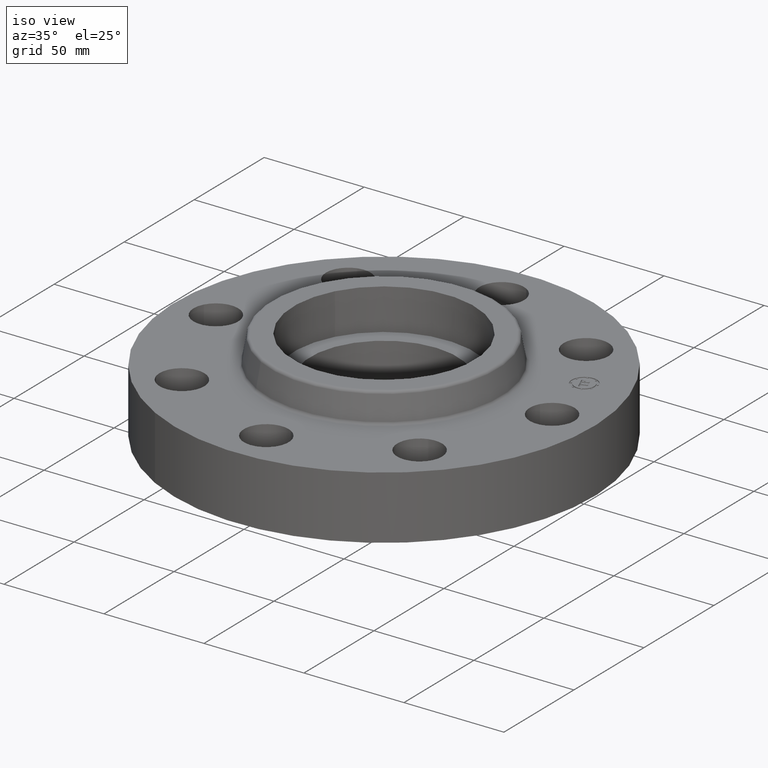
[diagram: clean part render]
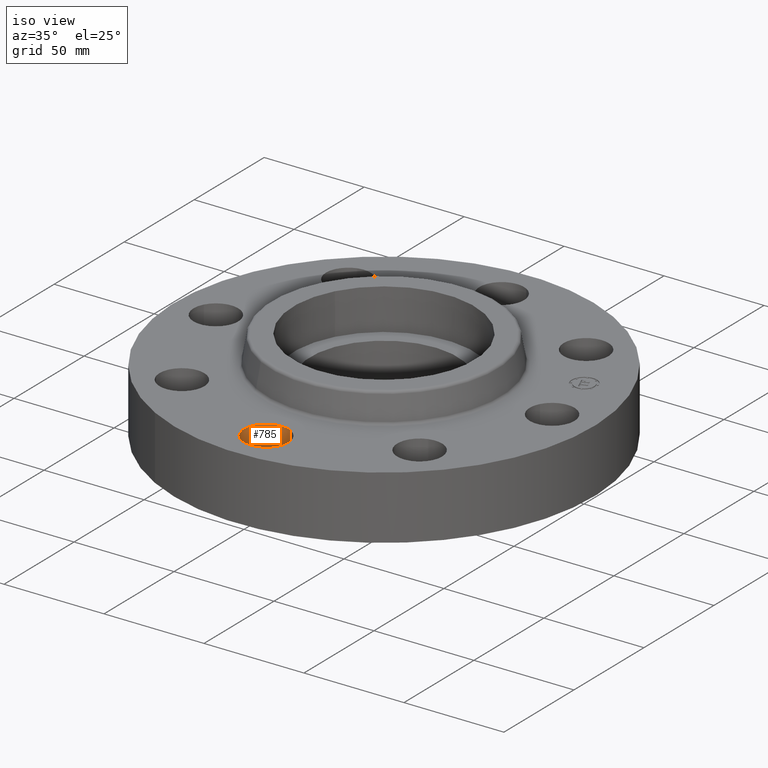
[diagram: same view with one face highlighted and labeled with its STEP entity id]
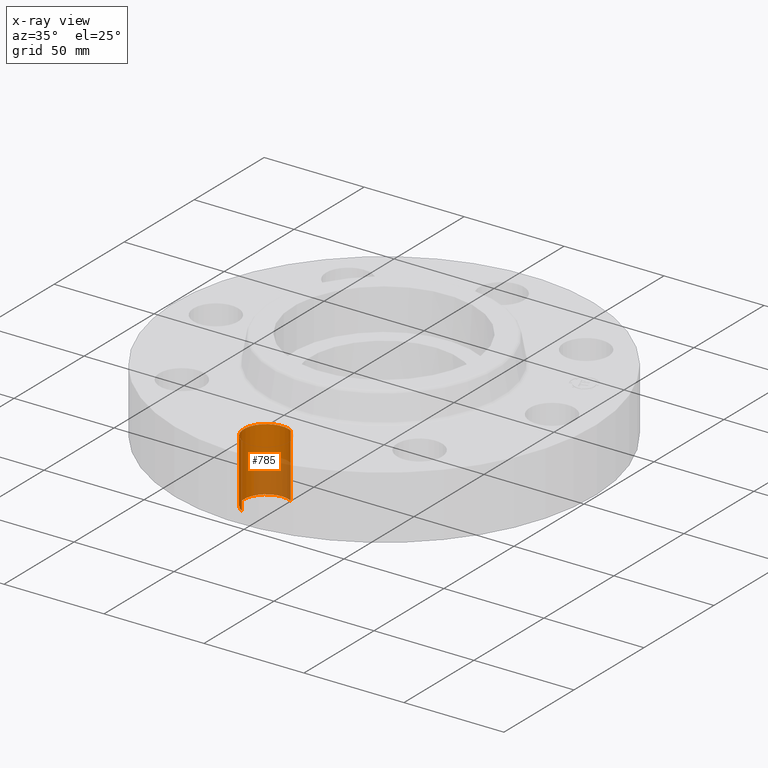
[diagram: x-ray of the same camera — body ghosted, the highlighted face saturated]
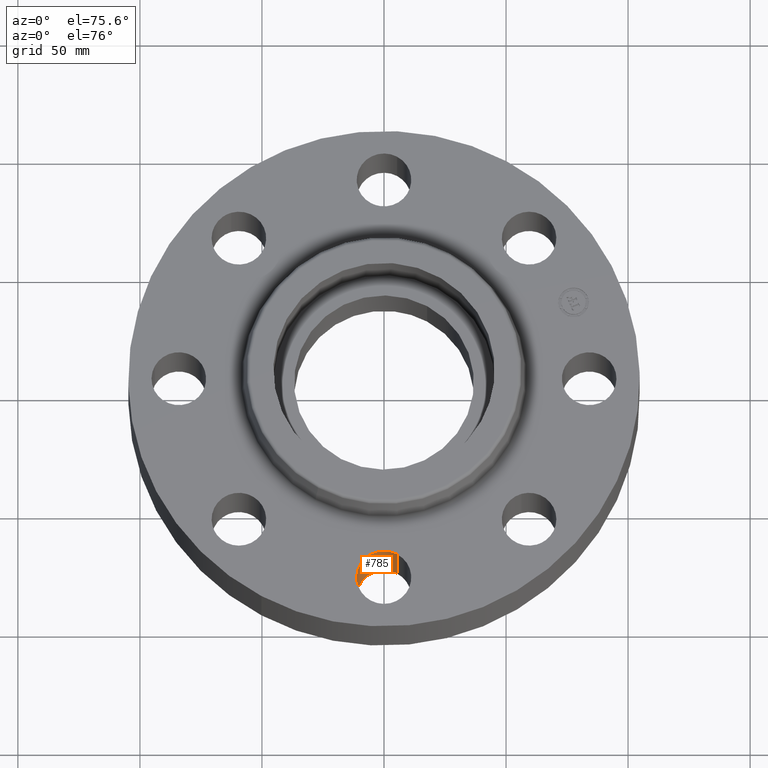
[diagram: same view with one face highlighted and labeled with its STEP entity id]
A machine part, iso view. The second image highlights one B-rep face of the part: STEP entity #785.
The next image is the same camera in x-ray: the body ghosted, the highlighted face saturated — about 38% of this face is hidden behind the body in this view.
A second angle (auxiliary view) of the same face is appended — the face is thin or edge-on in the first view.
In plain terms, the highlighted cylindrical surface (edge-blend (fillet) strip) has radius 11.176 mm, axis along (0, 0, -1).
Its self-contained STEP definition (entity closure, byte-faithful):
#342=AXIS2_PLACEMENT_3D('Circle Axis2P3D',#340,#341,$) ;
#760=AXIS2_PLACEMENT_3D('Cylinder Axis2P3D',#757,#758,#759) ;
#335=CARTESIAN_POINT('Vertex',(0.210947237,-2.92386367278,0.)) ;
#337=CARTESIAN_POINT('Vertex',(-0.210947237,-3.69613632728,0.)) ;
#340=CARTESIAN_POINT('Axis2P3D Location',(3.49676543189E-017,-3.31000000003,0.)) ;
#724=CARTESIAN_POINT('Line Origine',(0.210947236987,-2.92386367278,0.624999999989)) ;
#728=CARTESIAN_POINT('Vertex',(0.210947237,-2.92386367279,1.25000000001)) ;
#731=CARTESIAN_POINT('Line Origine',(-0.210947236987,-3.69613632724,0.624999999989)) ;
#735=CARTESIAN_POINT('Vertex',(-0.210947236987,-3.69613632724,1.24999999999)) ;
#757=CARTESIAN_POINT('Axis2P3D Location',(-3.56803423843E-016,-3.31000000001,1.24606299213)) ;
#763=CARTESIAN_POINT('Control Point',(-0.210947236987,-3.69613632724,1.25000000001)) ;
#764=CARTESIAN_POINT('Control Point',(-0.271601389433,-3.66300081274,1.25000000001)) ;
#765=CARTESIAN_POINT('Control Point',(-0.325749398821,-3.61795588326,1.25000000001)) ;
#766=CARTESIAN_POINT('Control Point',(-0.370262840224,-3.5626953225,1.25000000001)) ;
#767=CARTESIAN_POINT('Control Point',(-0.435223603166,-3.43769808393,1.25)) ;
#768=CARTESIAN_POINT('Control Point',(-0.448097302225,-3.29741808449,1.25)) ;
#769=CARTESIAN_POINT('Control Point',(-0.440497941251,-3.22686721097,1.25)) ;
#770=CARTESIAN_POINT('Control Point',(-0.398045742217,-3.09254661997,1.25)) ;
#771=CARTESIAN_POINT('Control Point',(-0.307955883249,-2.98425060119,1.25)) ;
#772=CARTESIAN_POINT('Control Point',(-0.252695322491,-2.93973715979,1.25)) ;
#773=CARTESIAN_POINT('Control Point',(-0.127698083922,-2.87477639684,1.24999999999)) ;
#774=CARTESIAN_POINT('Control Point',(0.0125819155223,-2.86190269778,1.24999999999)) ;
#775=CARTESIAN_POINT('Control Point',(0.0831327890369,-2.86950205876,1.24999999999)) ;
#776=CARTESIAN_POINT('Control Point',(0.150293084541,-2.89072815828,1.24999999999)) ;
#777=CARTESIAN_POINT('Control Point',(0.210947236987,-2.92386367278,1.24999999999)) ;
#341=DIRECTION('Axis2P3D Direction',(0.,0.,-0.0393700787402)) ;
#725=DIRECTION('Vector Direction',(0.,0.,-0.0393700787402)) ;
#732=DIRECTION('Vector Direction',(0.,0.,-0.0393700787402)) ;
#758=DIRECTION('Axis2P3D Direction',(0.,0.,-0.0393700787402)) ;
#759=DIRECTION('Axis2P3D XDirection',(-0.0188750212049,-0.0345504945626,0.)) ;
#726=VECTOR('Line Direction',#725,0.0393700787402) ;
#733=VECTOR('Line Direction',#732,0.0393700787402) ;
#780=ORIENTED_EDGE('',*,*,#737,.F.) ;
#781=ORIENTED_EDGE('',*,*,#344,.T.) ;
#782=ORIENTED_EDGE('',*,*,#730,.T.) ;
#783=ORIENTED_EDGE('',*,*,#778,.F.) ;
#785=ADVANCED_FACE('PartBody',(#784),#761,.F.) ;
#762=B_SPLINE_CURVE_WITH_KNOTS('',5,(#763,#764,#765,#766,#767,#768,#769,#770,#771,#772,#773,#774,#775,#776,#777),.UNSPECIFIED.,.F.,.U.,(6,3,3,3,6),(-17.5552197483,-8.77760987417,0.,8.77760987417,17.5552197483),.UNSPECIFIED.) ;
#343=CIRCLE('generated circle',#342,0.44000000002) ;
#761=CYLINDRICAL_SURFACE('generated cylinder',#760,0.440000000002) ;
#344=EDGE_CURVE('',#338,#336,#343,.T.) ;
#730=EDGE_CURVE('',#336,#729,#727,.F.) ;
#737=EDGE_CURVE('',#338,#736,#734,.F.) ;
#778=EDGE_CURVE('',#736,#729,#762,.T.) ;
#779=EDGE_LOOP('',(#780,#781,#782,#783)) ;
#784=FACE_OUTER_BOUND('',#779,.T.) ;
#727=LINE('Line',#724,#726) ;
#734=LINE('Line',#731,#733) ;
#336=VERTEX_POINT('',#335) ;
#338=VERTEX_POINT('',#337) ;
#729=VERTEX_POINT('',#728) ;
#736=VERTEX_POINT('',#735) ;